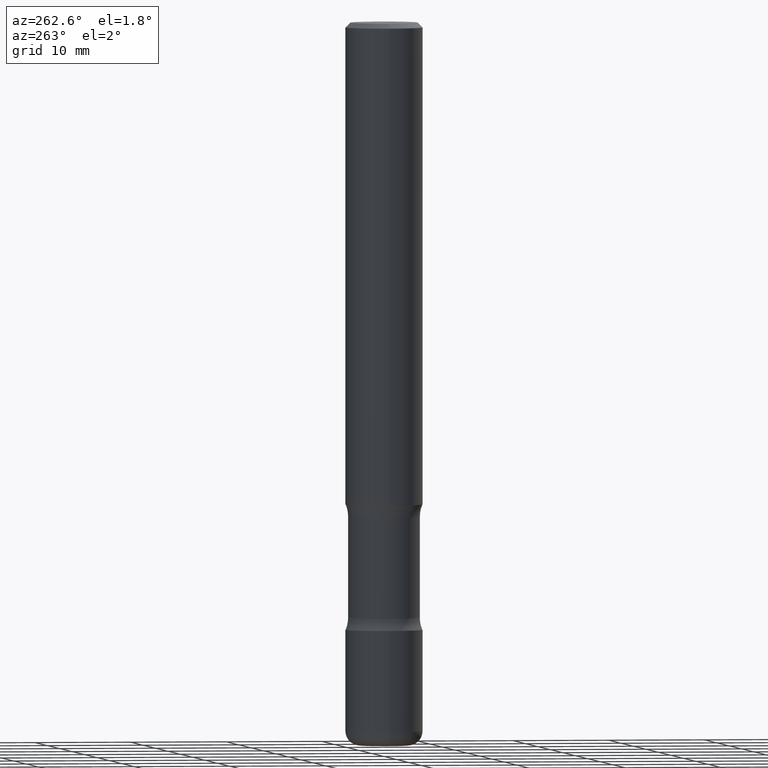
[diagram: clean part render]
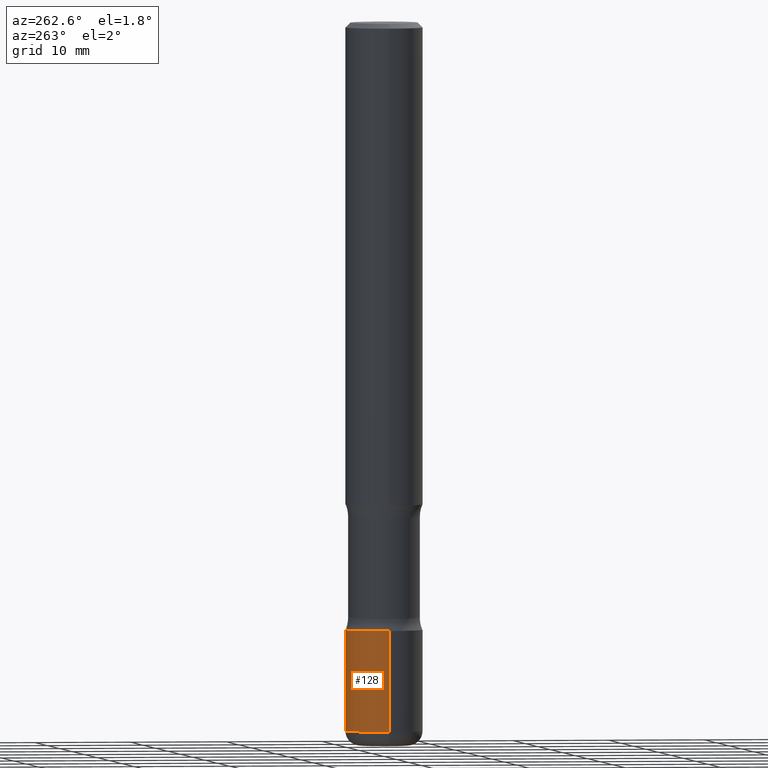
[diagram: same view with one face highlighted and labeled with its STEP entity id]
A machine part, auxiliary view. The second image highlights one B-rep face of the part: STEP entity #128.
In plain terms, the highlighted cylindrical surface (partial cylindrical patch) has radius 4.0005 mm, axis along (-0, 0, 1).
Its self-contained STEP definition (entity closure, byte-faithful):
#5 = EDGE_CURVE ( 'NONE', #211, #49, #96, .T. ) ;
#19 = DIRECTION ( 'NONE',  ( 1.000000000000000000, -6.982962677686265922E-15, 0.000000000000000000 ) ) ;
#37 = EDGE_CURVE ( 'NONE', #130, #234, #95, .T. ) ;
#43 = CARTESIAN_POINT ( 'NONE',  ( -0.1575000000000001399, -8.262680122716315885E-15, -2.480399999999999494 ) ) ;
#49 = VERTEX_POINT ( 'NONE', #68 ) ;
#51 = EDGE_CURVE ( 'NONE', #49, #234, #418, .T. ) ;
#62 = CARTESIAN_POINT ( 'NONE',  ( 7.076453084457931092E-29, -1.010329955021041128E-14, -2.893700000000000383 ) ) ;
#65 = DIRECTION ( 'NONE',  ( -2.445468806185136597E-29, 3.491481338843145583E-15, 1.000000000000000000 ) ) ;
#68 = CARTESIAN_POINT ( 'NONE',  ( -0.1575000000000003064, -8.984194741388252103E-15, -2.893700000000000383 ) ) ;
#95 = CIRCLE ( 'NONE', #205, 0.1575000000000001399 ) ;
#96 = CIRCLE ( 'NONE', #367, 0.1575000000000001954 ) ;
#113 = ORIENTED_EDGE ( 'NONE', *, *, #5, .T. ) ;
#114 = DIRECTION ( 'NONE',  ( 1.000000000000000000, -6.982962677686267499E-15, 4.876176775795935232E-29 ) ) ;
#116 = DIRECTION ( 'NONE',  ( -2.445468806185136877E-29, 3.491481338843145188E-15, 1.000000000000000000 ) ) ;
#128 = ADVANCED_FACE ( 'NONE', ( #495 ), #338, .T. ) ;
#130 = VERTEX_POINT ( 'NONE', #509 ) ;
#158 = CARTESIAN_POINT ( 'NONE',  ( -0.1575000000000001676, 1.119104808822158984E-15, -7.747322767151485392E-30 ) ) ;
#164 = DIRECTION ( 'NONE',  ( -2.445468806185136597E-29, 3.491481338843145583E-15, 1.000000000000000000 ) ) ;
#169 = VECTOR ( 'NONE', #353, 39.37007874015748143 ) ;
#183 = ORIENTED_EDGE ( 'NONE', *, *, #481, .F. ) ;
#201 = DIRECTION ( 'NONE',  ( -2.445468806185136597E-29, 3.491481338843145583E-15, 1.000000000000000000 ) ) ;
#205 = AXIS2_PLACEMENT_3D ( 'NONE', #280, #201, #364 ) ;
#211 = VERTEX_POINT ( 'NONE', #506 ) ;
#234 = VERTEX_POINT ( 'NONE', #43 ) ;
#260 = EDGE_LOOP ( 'NONE', ( #113, #397, #277, #183 ) ) ;
#277 = ORIENTED_EDGE ( 'NONE', *, *, #37, .F. ) ;
#280 = CARTESIAN_POINT ( 'NONE',  ( 6.065740826861612418E-29, -8.660270312866537270E-15, -2.480399999999999494 ) ) ;
#281 = AXIS2_PLACEMENT_3D ( 'NONE', #497, #164, #114 ) ;
#338 = CYLINDRICAL_SURFACE ( 'NONE', #281, 0.1575000000000001676 ) ;
#353 = DIRECTION ( 'NONE',  ( -2.445468806185136877E-29, 3.491481338843145188E-15, 1.000000000000000000 ) ) ;
#356 = LINE ( 'NONE', #479, #169 ) ;
#364 = DIRECTION ( 'NONE',  ( 1.000000000000000000, -6.982962677686268288E-15, 0.000000000000000000 ) ) ;
#367 = AXIS2_PLACEMENT_3D ( 'NONE', #62, #65, #19 ) ;
#397 = ORIENTED_EDGE ( 'NONE', *, *, #51, .T. ) ;
#418 = LINE ( 'NONE', #158, #551 ) ;
#479 = CARTESIAN_POINT ( 'NONE',  ( 0.1575000000000001676, -1.099816621735588269E-15, 7.679978421878606441E-30 ) ) ;
#481 = EDGE_CURVE ( 'NONE', #211, #130, #356, .T. ) ;
#495 = FACE_OUTER_BOUND ( 'NONE', #260, .T. ) ;
#497 = CARTESIAN_POINT ( 'NONE',  ( 0.000000000000000000, 0.000000000000000000, 0.000000000000000000 ) ) ;
#506 = CARTESIAN_POINT ( 'NONE',  ( 0.1575000000000003064, -1.120311617194600113E-14, -2.893700000000000383 ) ) ;
#509 = CARTESIAN_POINT ( 'NONE',  ( 0.1575000000000001399, -9.760086934602125539E-15, -2.480399999999999494 ) ) ;
#551 = VECTOR ( 'NONE', #116, 39.37007874015748143 ) ;